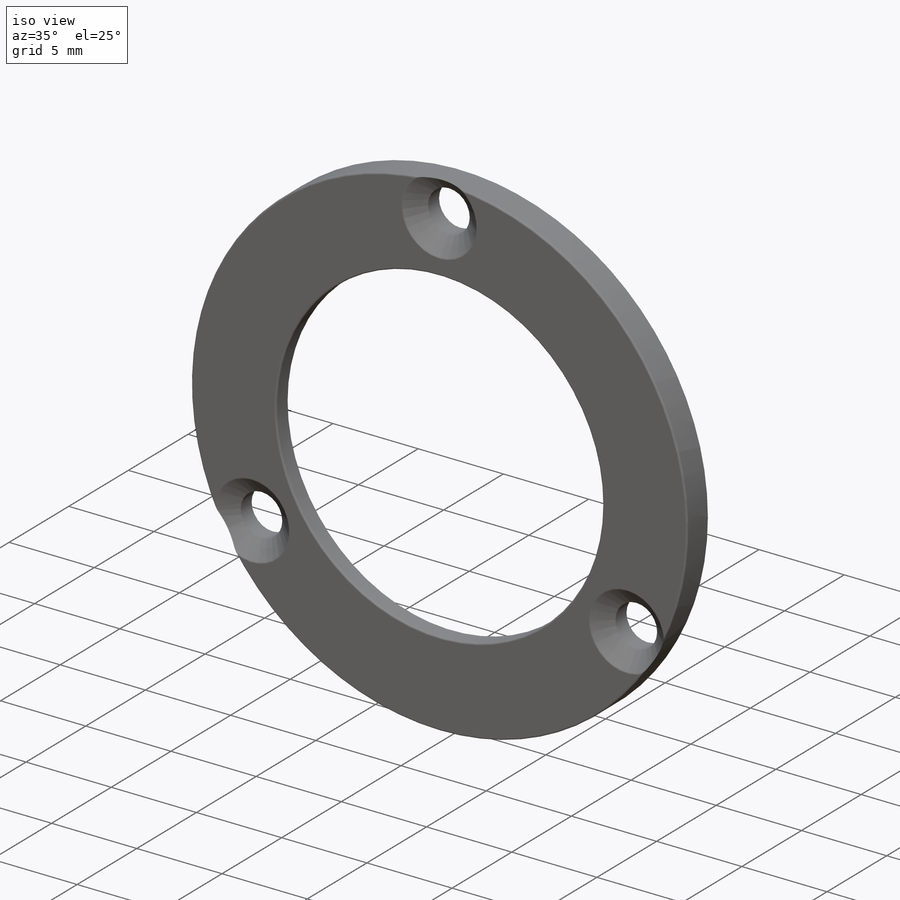
[diagram: iso view]
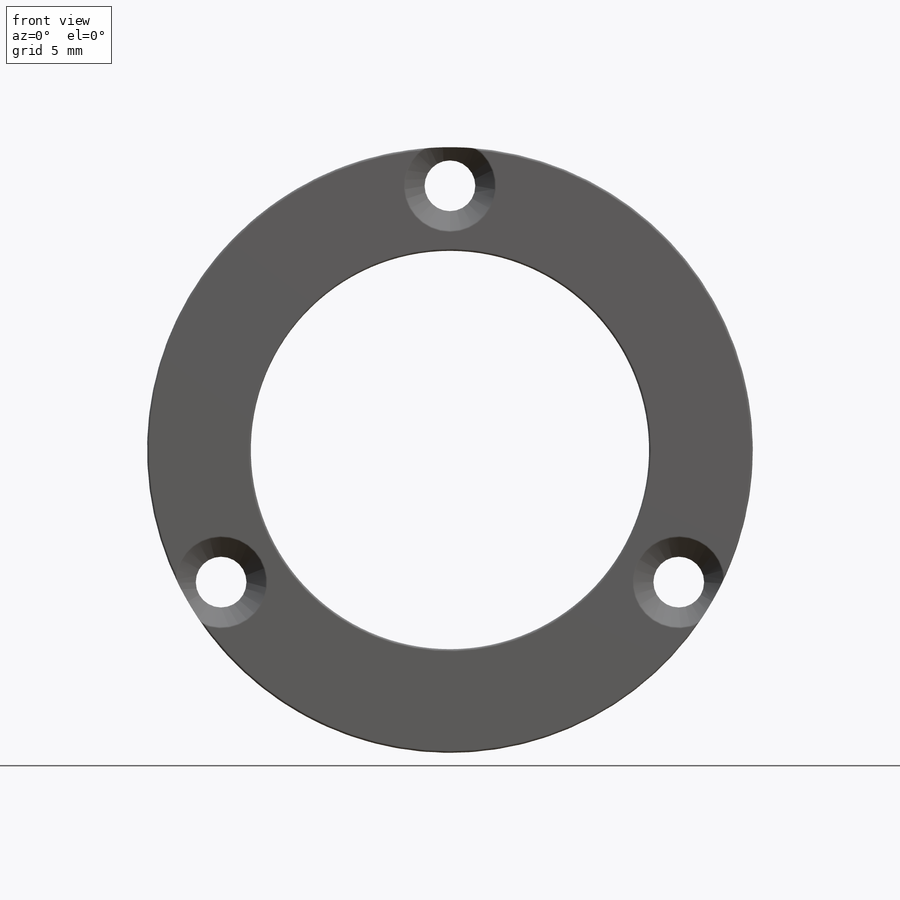
[diagram: front view]
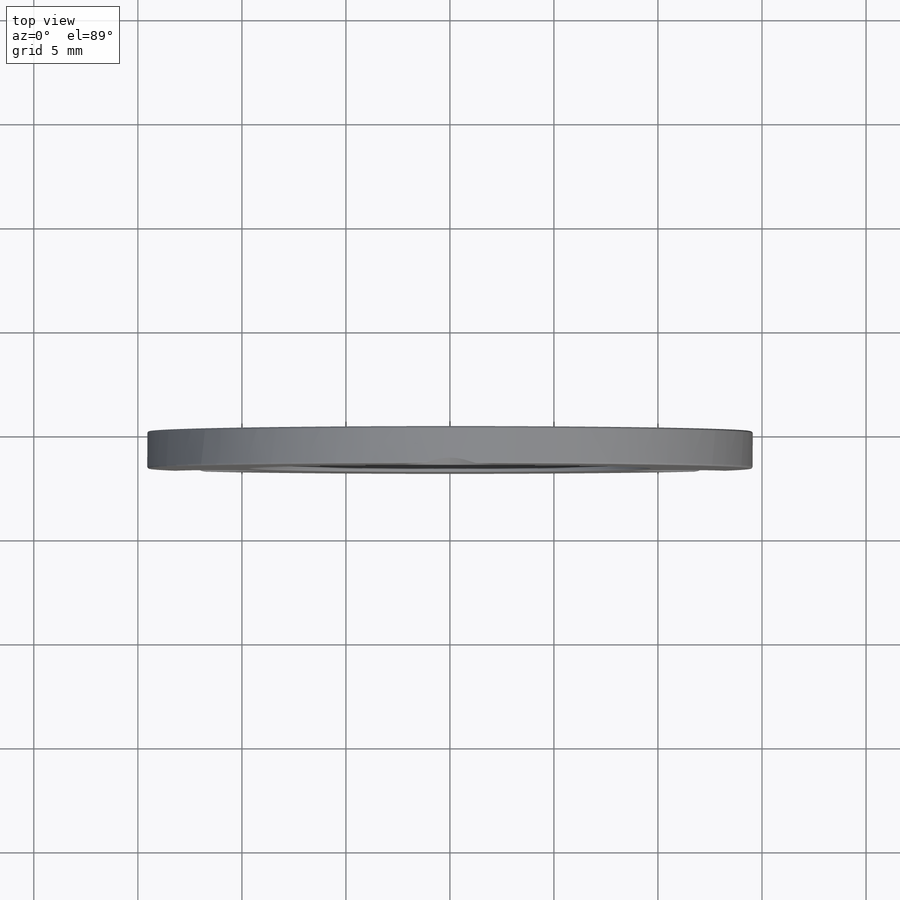
[diagram: top view]
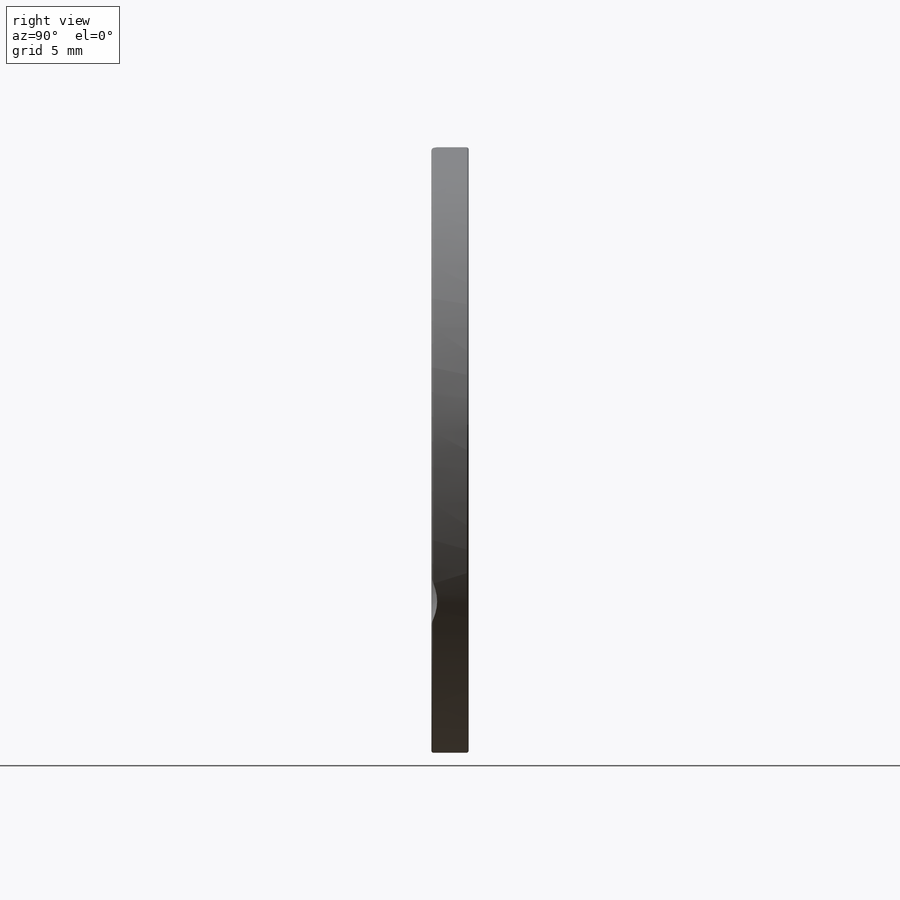
[diagram: right view]
SOLIDWORKS PART (.sldprt)
format: sldprt  version: not decoded by parser v0  size: 382,976 bytes
history: native  units: mm
features: sketch x6, cut_extrude x2, fillet x2, material x1, extrude x1, hole x1 (+16 scaffold rows collapsed)
feature tree (29):
  scaffold x16  (default folders/planes/origin — collapsed)
  material  "6061-T6 (SS)"
  sketch  "Sketch1"  dims[D1=29.1084mm]
  extrude  "Extrude1"  Depth=1.7907mm
  sketch  "Sketch2"  dims[D1=19.1643mm]
  cut_extrude  "Extrude2"  [1 undecoded]
  sketch  "Sketch3"  dims[c1.D1=25.4mm c1.D2=12.7mm c2.D2=120.0deg c2.D3=~9.718514mm c3.D3=120.0deg]
  hole  "CSK for #2 Flat Head Machine Screw (100)1"  Diameter=2.4384mm Depth=1.7907mm
  sketch  "3DSketch1"
  sketch  "Sketch4"  dims[hole-wizard template sketch: 55 standard entries collapsed; hole parameters kept: c17.Thru Hole Depth=1.7907mm c17.Near C'Sink Dia.=4.3688mm c17.D4=~3.666174mm c17.Near C'Sink Angle=100.0deg]
  sketch  "Sketch5"  dims[D1=21.463mm]
  cut_extrude  "Extrude3"  Depth=0.7493mm
  fillet  "Fillet1"  Radius=0.099219mm
  fillet  "Fillet2"  Radius=0.198437mm
decode coverage: 10 of 12 modeling features carry decoded parameters
note: ~ marks probable driven/reference dimensions
note: 1 parameter value undecoded
note: suppression state not decoded; provenance and decode notes live in map.json
